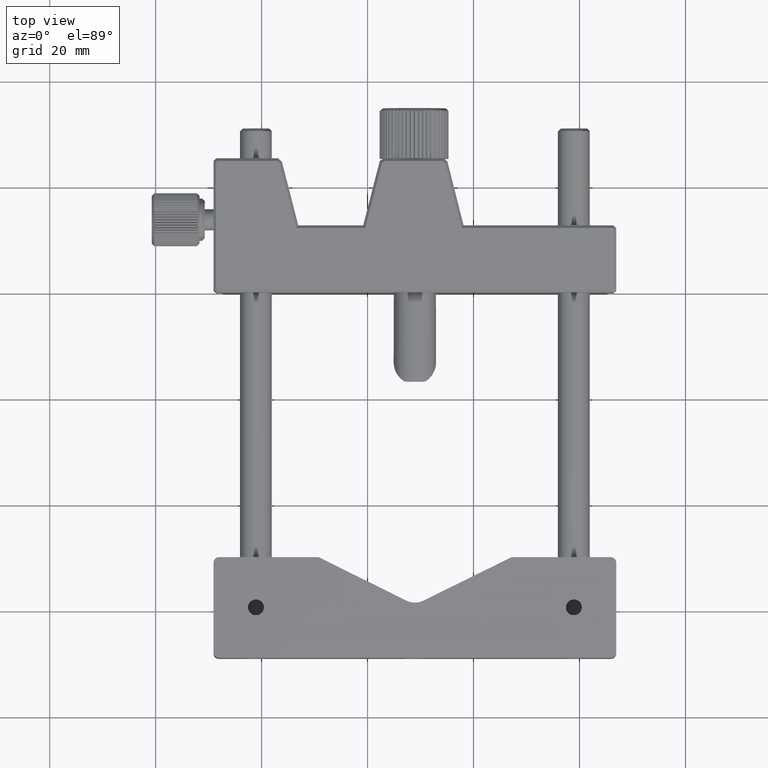
[diagram: clean part render]
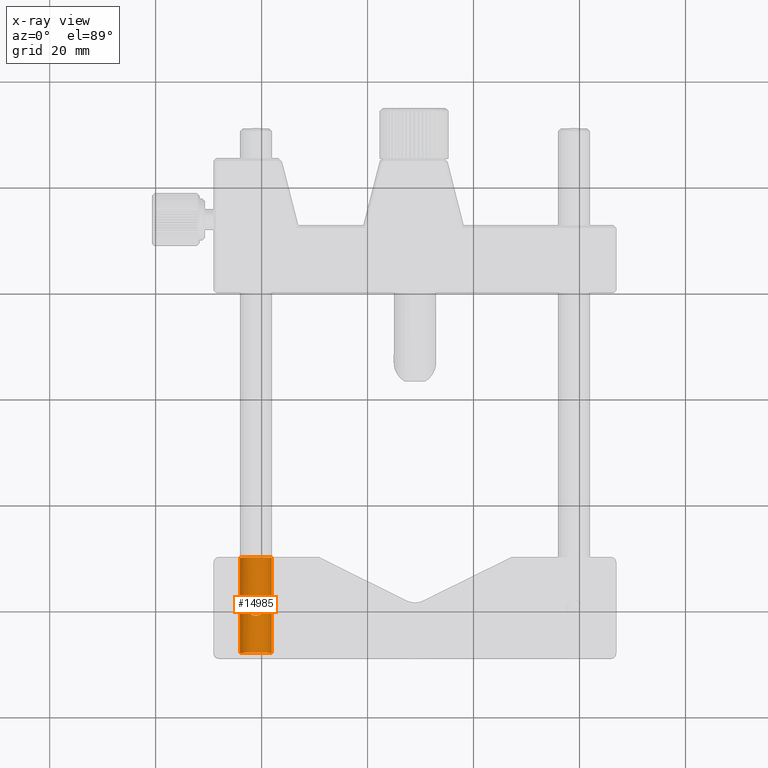
[diagram: x-ray — body ghosted, one internal face saturated and labeled with its STEP entity id]
A machine part, top view, then the same camera in x-ray: the body is ghosted and one INTERNAL B-rep face — a face not visible from any outside direction — is saturated and labeled: STEP entity #14985.
In plain terms, the highlighted cylindrical surface (edge-blend (fillet) strip) has radius 3 mm, axis along (-0, 1, 0).
Its self-contained STEP definition (entity closure, byte-faithful):
#80 = CARTESIAN_POINT ( 'NONE',  ( -55.41710272130040238, -13.82547520767534088, 2.855825252948232418 ) ) ;
#205 = CARTESIAN_POINT ( 'NONE',  ( -55.41536947130393997, -16.19835973381179173, 2.856238943193764701 ) ) ;
#407 = B_SPLINE_CURVE_WITH_KNOTS ( 'NONE', 3,
 ( #4691, #5531, #8072, #940, #7228, #14167, #10587, #15556, #4309, #10508, #15472, #11809, #12191, #1937, #6920, #5911, #12944, #13023, #3013, #1781, #6763, #10964, #12113, #10885, #1019, #5993, #9292, #1856, #637, #7387, #11369, #205, #6319, #13802, #2489, #15116, #13881, #7553, #11127, #11206, #7711, #3793, #5016, #1266 ),
 .UNSPECIFIED., .F., .F.,
 ( 4, 2, 2, 2, 2, 2, 2, 2, 2, 2, 2, 2, 2, 2, 2, 2, 2, 2, 2, 2, 2, 4 ),
 ( 0.000000000000000000, 0.03125000000000363598, 0.06250000000000727196, 0.07812500000000908995, 0.08593750000000950628, 0.09375000000000993650, 0.1250000000000148770, 0.1406250000000162370, 0.1562500000000176248, 0.1875000000000186795, 0.2187500000000197342, 0.2500000000000207612, 0.2812500000000218159, 0.3125000000000229261, 0.3281250000000234812, 0.3437500000000239808, 0.3750000000000227596, 0.3906250000000217604, 0.3984375000000201505, 0.4062500000000185407, 0.4375000000000122680, 0.5000000000000000000 ),
 .UNSPECIFIED. ) ;
#449 = CARTESIAN_POINT ( 'NONE',  ( -55.07987603206255756, -14.19266811336034806, 2.724051960948217666 ) ) ;
#505 = DIRECTION ( 'NONE',  ( 3.700743415417155106E-16, -1.000000000000000000, -1.110223024625150032E-15 ) ) ;
#527 = DIRECTION ( 'NONE',  ( -2.891205793294680298E-16, 1.000000000000000000, 0.000000000000000000 ) ) ;
#600 = DIRECTION ( 'NONE',  ( -1.000000000000000000, -2.891205793294675861E-16, 0.000000000000000000 ) ) ;
#637 = CARTESIAN_POINT ( 'NONE',  ( -55.66755034661944990, -16.35441379996938238, 2.924750574625971655 ) ) ;
#680 = CARTESIAN_POINT ( 'NONE',  ( -54.83672654127905588, -14.91494193871942819, 2.598056185874276558 ) ) ;
#763 = CARTESIAN_POINT ( 'NONE',  ( -56.72902655764056590, -13.56018989498116945, 2.975927545958599651 ) ) ;
#940 = CARTESIAN_POINT ( 'NONE',  ( -57.78790359044279512, -15.40222005681636297, 2.625774928291876531 ) ) ;
#1019 = CARTESIAN_POINT ( 'NONE',  ( -56.14370957925024896, -16.50170176731617033, 2.995454541532370119 ) ) ;
#1266 = CARTESIAN_POINT ( 'NONE',  ( -54.83676122642620498, -15.01113522329382377, 2.598076211353318232 ) ) ;
#1302 = CARTESIAN_POINT ( 'NONE',  ( -55.66576929737503576, -13.66592586941186127, 2.925484788499842281 ) ) ;
#1781 = CARTESIAN_POINT ( 'NONE',  ( -56.82480957850629721, -16.43298667487633224, 2.961503034378269117 ) ) ;
#1849 = CARTESIAN_POINT ( 'NONE',  ( -54.83676122642620498, -15.01113522329382377, 2.598076211353318232 ) ) ;
#1856 = CARTESIAN_POINT ( 'NONE',  ( -55.71196939826877781, -16.37570301829596175, 2.934580743676028280 ) ) ;
#1937 = CARTESIAN_POINT ( 'NONE',  ( -57.36514401036501454, -16.10414462192203899, 2.818457113266345182 ) ) ;
#1962 = AXIS2_PLACEMENT_3D ( 'NONE', #10299, #505, #4244 ) ;
#1981 = CARTESIAN_POINT ( 'NONE',  ( -56.23985570529934108, -13.51113837306452936, 3.000000000101851416 ) ) ;
#2285 = CARTESIAN_POINT ( 'NONE',  ( -55.94612472624737620, -13.55987217887168406, 2.976087204763836702 ) ) ;
#2489 = CARTESIAN_POINT ( 'NONE',  ( -55.20947094690264123, -16.00174367680617493, 2.780340395169040857 ) ) ;
#2755 = CARTESIAN_POINT ( 'NONE',  ( -58.73576175362072149, -23.51113522487047192, 1.843640159924744948 ) ) ;
#2819 = CARTESIAN_POINT ( 'NONE',  ( -54.88561886242801080, -14.62005039286978914, 2.625774928302226030 ) ) ;
#2840 = CARTESIAN_POINT ( 'NONE',  ( -59.33676122642619788, -23.51113522487050389, 4.903402095317040417E-15 ) ) ;
#3013 = CARTESIAN_POINT ( 'NONE',  ( -57.00775315549859101, -16.35634458032433614, 2.925484788495664734 ) ) ;
#3056 = FACE_OUTER_BOUND ( 'NONE', #9961, .T. ) ;
#3214 = CARTESIAN_POINT ( 'NONE',  ( -57.43212568144006980, -13.98525016660350140, 2.793111094661913096 ) ) ;
#3594 = CARTESIAN_POINT ( 'NONE',  ( -55.84871287432492437, -13.58928377486930117, 2.961503034374096011 ) ) ;
#3671 = CARTESIAN_POINT ( 'NONE',  ( -57.63671208203341223, -14.25651829093940925, 2.704438703098174912 ) ) ;
#3750 = CARTESIAN_POINT ( 'NONE',  ( -56.96155305459305396, -13.64656743144859874, 2.934580743674175540 ) ) ;
#3793 = CARTESIAN_POINT ( 'NONE',  ( -54.87611242841357040, -15.40599152158254448, 2.621819931972202866 ) ) ;
#3797 = ORIENTED_EDGE ( 'NONE', *, *, #10987, .T. ) ;
#4056 = CARTESIAN_POINT ( 'NONE',  ( -56.72946030812492069, -23.51113522487045771, 3.000000000000000000 ) ) ;
#4244 = DIRECTION ( 'NONE',  ( 1.000000000000000000, 2.891205793294675861E-16, -2.397580590852828151E-15 ) ) ;
#4309 = CARTESIAN_POINT ( 'NONE',  ( -57.63367693783443713, -15.76478675558814402, 2.705219770988068984 ) ) ;
#4510 = CARTESIAN_POINT ( 'NONE',  ( -57.50944672432897420, -14.07580790438206364, 2.761354331634707115 ) ) ;
#4691 = CARTESIAN_POINT ( 'NONE',  ( -57.83676122642620498, -15.01113522802359768, 2.598076211353316456 ) ) ;
#4711 = CARTESIAN_POINT ( 'NONE',  ( -53.71540206136342022, -23.51113522487046481, 1.510856941112693308 ) ) ;
#4795 = CARTESIAN_POINT ( 'NONE',  ( -53.33676122642619788, -23.51113522487050389, -7.161305845995138923E-15 ) ) ;
#4799 = VERTEX_POINT ( 'NONE', #1849 ) ;
#4801 = DIRECTION ( 'NONE',  ( -2.891205793294680298E-16, 1.000000000000000000, 0.000000000000000000 ) ) ;
#4817 = CARTESIAN_POINT ( 'NONE',  ( -57.56602700932599248, -14.15171488671980171, 2.736630582094502273 ) ) ;
#4980 = CARTESIAN_POINT ( 'NONE',  ( -55.14728803459173889, -14.09270535781067224, 2.754753195843307356 ) ) ;
#5016 = CARTESIAN_POINT ( 'NONE',  ( -54.83683059672046056, -15.20352178771289786, 2.598116262311395808 ) ) ;
#5053 = CARTESIAN_POINT ( 'NONE',  ( -55.45431277192528086, -13.79755348398204973, 2.867607880034999557 ) ) ;
#5336 = CARTESIAN_POINT ( 'NONE',  ( -55.02753233339325334, -14.27900376953088291, 2.699275825721230149 ) ) ;
#5447 = CARTESIAN_POINT ( 'NONE',  ( -59.33676122642620498, -5.511135224870471916, -8.673617379884108442E-16 ) ) ;
#5531 = CARTESIAN_POINT ( 'NONE',  ( -57.83672641382955248, -15.10768076692028394, 2.598096310415355159 ) ) ;
#5581 = B_SPLINE_CURVE_WITH_KNOTS ( 'NONE', 3,
 ( #11855, #680, #15599, #2819, #7795, #10398, #12750, #5336, #6644, #11614, #449, #4980, #7434, #8582, #8736, #80, #5053, #12393, #1302, #3594, #2285, #11940, #1981, #15978, #6963, #763, #13149, #3750, #14842, #14450, #9888, #9960, #12232, #3214, #14366, #4510, #9494, #8189, #4817, #3671, #5734, #9803, #13528, #8656 ),
 .UNSPECIFIED., .F., .F.,
 ( 4, 2, 2, 2, 2, 2, 2, 2, 2, 2, 2, 2, 2, 2, 2, 2, 2, 2, 2, 2, 2, 4 ),
 ( 0.5000000000000000000, 0.5312500000000046629, 0.5625000000000094369, 0.5781250000000117684, 0.5859375000000126565, 0.5937500000000135447, 0.6250000000000131006, 0.6406250000000119904, 0.6562500000000108802, 0.6875000000000086597, 0.7187500000000063283, 0.7500000000000039968, 0.7812500000000017764, 0.8124999999999995559, 0.8281249999999983347, 0.8437499999999972244, 0.8749999999999948930, 0.8906249999999938938, 0.8984374999999936717, 0.9062499999999933387, 0.9374999999999955591, 1.000000000000000000 ),
 .UNSPECIFIED. ) ;
#5734 = CARTESIAN_POINT ( 'NONE',  ( -57.68266233353462979, -14.34150654069628494, 2.681493777093832964 ) ) ;
#5911 = CARTESIAN_POINT ( 'NONE',  ( -57.25641973153796727, -16.19679524207887411, 2.855825252952755910 ) ) ;
#5993 = CARTESIAN_POINT ( 'NONE',  ( -55.94449589522996291, -16.46208055476776977, 2.975927545960376897 ) ) ;
#6020 = CARTESIAN_POINT ( 'NONE',  ( -54.82590428531350568, -23.51113522487047547, 2.621359165062771446 ) ) ;
#6319 = CARTESIAN_POINT ( 'NONE',  ( -55.34228508856546824, -16.13811765802827836, 2.831287466322889745 ) ) ;
#6424 = CARTESIAN_POINT ( 'NONE',  ( -57.12200487950403271, -23.51113522487047192, 2.921918030004947209 ) ) ;
#6547 = EDGE_CURVE ( 'NONE', #8459, #7944, #14575, .T. ) ;
#6562 = CARTESIAN_POINT ( 'NONE',  ( -59.33676122642620498, -5.511135224870471916, -8.673617379884030542E-16 ) ) ;
#6569 = CARTESIAN_POINT ( 'NONE',  ( -56.33676122642620498, -5.511135224870471028, -8.673617379884030542E-16 ) ) ;
#6644 = CARTESIAN_POINT ( 'NONE',  ( -55.03984551505301681, -14.25748369407705241, 2.705219771004839124 ) ) ;
#6763 = CARTESIAN_POINT ( 'NONE',  ( -56.72739772658891155, -16.46239827087287821, 2.976087204765416772 ) ) ;
#6912 = CARTESIAN_POINT ( 'NONE',  ( -53.33676122642619788, -5.511135224870470140, -4.999676982441933696E-16 ) ) ;
#6920 = CARTESIAN_POINT ( 'NONE',  ( -57.33007254223858240, -16.13604482976149868, 2.831049676587498620 ) ) ;
#6963 = CARTESIAN_POINT ( 'NONE',  ( -56.52981287358405638, -13.52056868241667331, 2.995454541534144255 ) ) ;
#7228 = CARTESIAN_POINT ( 'NONE',  ( -57.75837063707907504, -15.49945804610520383, 2.642122130140737379 ) ) ;
#7387 = CARTESIAN_POINT ( 'NONE',  ( -55.58047064928538106, -16.30718214019855239, 2.903452029628645903 ) ) ;
#7434 = CARTESIAN_POINT ( 'NONE',  ( -55.20832175930873120, -14.01840145636175272, 2.780595433992928189 ) ) ;
#7553 = CARTESIAN_POINT ( 'NONE',  ( -55.12074690996405479, -15.88920956217511637, 2.742544980333321725 ) ) ;
#7655 = CARTESIAN_POINT ( 'NONE',  ( -55.55151757334837725, -23.51113522487047547, 2.921918030004947653 ) ) ;
#7711 = CARTESIAN_POINT ( 'NONE',  ( -54.99086011928745421, -15.68076390896855088, 2.681493777078054919 ) ) ;
#7795 = CARTESIAN_POINT ( 'NONE',  ( -54.91515181572334114, -14.52281240374580484, 2.642122130114730627 ) ) ;
#7944 = VERTEX_POINT ( 'NONE', #6912 ) ;
#8034 = DIRECTION ( 'NONE',  ( -2.891205793294680298E-16, 1.000000000000000000, 0.000000000000000000 ) ) ;
#8072 = CARTESIAN_POINT ( 'NONE',  ( -57.82719738160246692, -15.20432376114014161, 2.603672061153882833 ) ) ;
#8189 = CARTESIAN_POINT ( 'NONE',  ( -57.55277554287127373, -14.13306088754813139, 2.742544980340940963 ) ) ;
#8459 = VERTEX_POINT ( 'NONE', #14055 ) ;
#8474 = CARTESIAN_POINT ( 'NONE',  ( -54.49312106650145182, -23.51113522487047192, 2.399000527194536936 ) ) ;
#8582 = CARTESIAN_POINT ( 'NONE',  ( -55.30837844247821522, -13.91812582782772800, 2.818457113262871516 ) ) ;
#8656 = CARTESIAN_POINT ( 'NONE',  ( -57.83676122642620498, -15.01113522802359768, 2.598076211353316456 ) ) ;
#8736 = CARTESIAN_POINT ( 'NONE',  ( -55.34344991059991514, -13.88622561999271632, 2.831049676582615415 ) ) ;
#8798 = VERTEX_POINT ( 'NONE', #10318 ) ;
#8952 = CARTESIAN_POINT ( 'NONE',  ( -59.33676122642620498, -23.51113522487047192, 0.3926990816987233068 ) ) ;
#9047 = VERTEX_POINT ( 'NONE', #5447 ) ;
#9292 = CARTESIAN_POINT ( 'NONE',  ( -55.84778444284602728, -16.43259083859915748, 2.961320243382230988 ) ) ;
#9494 = CARTESIAN_POINT ( 'NONE',  ( -57.52416296128507156, -14.09462931854561596, 2.755053703114829666 ) ) ;
#9538 = VERTEX_POINT ( 'NONE', #13896 ) ;
#9783 = CARTESIAN_POINT ( 'NONE',  ( -53.33676122642619077, -23.51113522487046481, 0.3926990816987172561 ) ) ;
#9803 = CARTESIAN_POINT ( 'NONE',  ( -57.79741002449968335, -14.61627892831051589, 2.621819931940552628 ) ) ;
#9805 = ORIENTED_EDGE ( 'NONE', *, *, #12438, .F. ) ;
#9872 = CARTESIAN_POINT ( 'NONE',  ( -53.33676122642619788, -5.511135224870470140, -4.999676982441970181E-16 ) ) ;
#9888 = CARTESIAN_POINT ( 'NONE',  ( -57.13713603475249414, -13.74199434801186470, 2.891568101040217886 ) ) ;
#9960 = CARTESIAN_POINT ( 'NONE',  ( -57.25815298156511801, -13.82391071594531695, 2.856238943188899260 ) ) ;
#9961 = EDGE_LOOP ( 'NONE', ( #13387, #13495, #3797, #9805 ) ) ;
#10019 = VECTOR ( 'NONE', #8034, 1000.000000000000000 ) ;
#10100 = AXIS2_PLACEMENT_3D ( 'NONE', #6569, #527, #600 ) ;
#10299 = CARTESIAN_POINT ( 'NONE',  ( -56.33676122642620498, -5.511135224870471028, 3.293450735725519879E-15 ) ) ;
#10318 = CARTESIAN_POINT ( 'NONE',  ( -57.83676122642620498, -15.01113522802359768, 2.598076211353316456 ) ) ;
#10398 = CARTESIAN_POINT ( 'NONE',  ( -54.97134042941168275, -14.38823979392837948, 2.671342679972092515 ) ) ;
#10508 = CARTESIAN_POINT ( 'NONE',  ( -57.60783631408197891, -15.80746342938370930, 2.717456990162522956 ) ) ;
#10587 = CARTESIAN_POINT ( 'NONE',  ( -57.68113812573201216, -15.67816123805649475, 2.682038751270000354 ) ) ;
#10631 = FACE_BOUND ( 'NONE', #14743, .T. ) ;
#10885 = CARTESIAN_POINT ( 'NONE',  ( -56.23985569903363313, -16.51113837306816379, 2.999999999898147252 ) ) ;
#10964 = CARTESIAN_POINT ( 'NONE',  ( -56.53144169180007594, -16.50138405376433326, 2.995294883985480272 ) ) ;
#10987 = EDGE_CURVE ( 'NONE', #9538, #9047, #12904, .T. ) ;
#11006 = B_SPLINE_CURVE_WITH_KNOTS ( 'NONE', 3,
 ( #4795, #9783, #15877, #4711, #14651, #8474, #6020, #7655, #11478, #4056, #6424, #15061, #13905, #2755, #11230, #12454, #8952, #2840 ),
 .UNSPECIFIED., .F., .F.,
 ( 4, 2, 2, 2, 2, 2, 2, 2, 4 ),
 ( 0.000000000000000000, 0.1250000000000000833, 0.2500000000000001665, 0.3750000000000001665, 0.5000000000000002220, 0.6250000000000002220, 0.7500000000000001110, 0.8750000000000001110, 1.000000000000000000 ),
 .UNSPECIFIED. ) ;
#11127 = CARTESIAN_POINT ( 'NONE',  ( -55.10749544353108575, -15.87055556303248061, 2.736630582096616138 ) ) ;
#11206 = CARTESIAN_POINT ( 'NONE',  ( -55.03681037080093574, -15.76575215875593905, 2.704438703089952600 ) ) ;
#11230 = CARTESIAN_POINT ( 'NONE',  ( -58.95812039148896133, -23.51113522487046836, 1.510856941112698193 ) ) ;
#11369 = CARTESIAN_POINT ( 'NONE',  ( -55.53638641809159537, -16.28027610172092210, 2.891568101037793603 ) ) ;
#11478 = CARTESIAN_POINT ( 'NONE',  ( -55.94406214472748218, -23.51113522487047547, 2.999999999999999112 ) ) ;
#11614 = CARTESIAN_POINT ( 'NONE',  ( -55.06568613879289842, -14.21480702030901178, 2.717456990172987030 ) ) ;
#11694 = CYLINDRICAL_SURFACE ( 'NONE', #10100, 3.000000000000002665 ) ;
#11774 = ORIENTED_EDGE ( 'NONE', *, *, #15079, .T. ) ;
#11809 = CARTESIAN_POINT ( 'NONE',  ( -57.52623441833073059, -15.92956509185885317, 2.754753195811391109 ) ) ;
#11855 = CARTESIAN_POINT ( 'NONE',  ( -54.83676122642620498, -15.01113522329382377, 2.598076211353318232 ) ) ;
#11880 = EDGE_CURVE ( 'NONE', #8798, #4799, #407, .T. ) ;
#11940 = CARTESIAN_POINT ( 'NONE',  ( -56.14208076106855572, -13.52088639597289976, 2.995294883987070111 ) ) ;
#12113 = CARTESIAN_POINT ( 'NONE',  ( -56.43366674751248269, -16.51113207667276939, 3.000000000101850972 ) ) ;
#12191 = CARTESIAN_POINT ( 'NONE',  ( -57.46520069356219551, -16.00386899336135826, 2.780595433985915577 ) ) ;
#12232 = CARTESIAN_POINT ( 'NONE',  ( -57.33123736432724371, -13.88415279175294081, 2.831287466307636613 ) ) ;
#12393 = CARTESIAN_POINT ( 'NONE',  ( -55.57951677960294745, -13.71279243319670549, 2.904159389860497598 ) ) ;
#12438 = EDGE_CURVE ( 'NONE', #7944, #9047, #12639, .T. ) ;
#12454 = CARTESIAN_POINT ( 'NONE',  ( -59.25867925643117218, -23.51113522487047192, 0.7852436530778406087 ) ) ;
#12639 = CIRCLE ( 'NONE', #1962, 3.000000000000002665 ) ;
#12750 = CARTESIAN_POINT ( 'NONE',  ( -54.99238432715827685, -14.34410921160182895, 2.682038751288988276 ) ) ;
#12904 = LINE ( 'NONE', #6562, #10019 ) ;
#12944 = CARTESIAN_POINT ( 'NONE',  ( -57.21920968094573823, -16.22471696574883993, 2.867607880029567458 ) ) ;
#13023 = CARTESIAN_POINT ( 'NONE',  ( -57.09400567321234377, -16.30947801656424190, 2.904159389871340036 ) ) ;
#13109 = ORIENTED_EDGE ( 'NONE', *, *, #11880, .T. ) ;
#13149 = CARTESIAN_POINT ( 'NONE',  ( -56.82573800998763858, -13.58967961113443934, 2.961320243385919593 ) ) ;
#13387 = ORIENTED_EDGE ( 'NONE', *, *, #6547, .F. ) ;
#13495 = ORIENTED_EDGE ( 'NONE', *, *, #15422, .T. ) ;
#13528 = CARTESIAN_POINT ( 'NONE',  ( -57.83683062008817188, -14.81868625440342591, 2.598036146903883736 ) ) ;
#13655 = VECTOR ( 'NONE', #4801, 1000.000000000000000 ) ;
#13802 = CARTESIAN_POINT ( 'NONE',  ( -55.24139677139227445, -16.03702028311721506, 2.793111094654321391 ) ) ;
#13881 = CARTESIAN_POINT ( 'NONE',  ( -55.14935949154023831, -15.92764113116753499, 2.755053703103128360 ) ) ;
#13896 = CARTESIAN_POINT ( 'NONE',  ( -59.33676122642619788, -23.51113522487050389, 4.903402095317040417E-15 ) ) ;
#13905 = CARTESIAN_POINT ( 'NONE',  ( -58.18040138635094394, -23.51113522487047192, 2.399000527194540933 ) ) ;
#14055 = CARTESIAN_POINT ( 'NONE',  ( -53.33676122642619788, -23.51113522487050389, -7.161305845995138923E-15 ) ) ;
#14167 = CARTESIAN_POINT ( 'NONE',  ( -57.70218202346580227, -15.63403065575747242, 2.671342679959054056 ) ) ;
#14366 = CARTESIAN_POINT ( 'NONE',  ( -57.46405150591991173, -14.02052677290445537, 2.780340395181143176 ) ) ;
#14450 = CARTESIAN_POINT ( 'NONE',  ( -57.09305180358092002, -13.71508830954781821, 2.903452029625023023 ) ) ;
#14575 = LINE ( 'NONE', #9872, #13655 ) ;
#14651 = CARTESIAN_POINT ( 'NONE',  ( -53.93776069923166006, -23.51113522487047547, 1.843640159924740063 ) ) ;
#14743 = EDGE_LOOP ( 'NONE', ( #11774, #13109 ) ) ;
#14842 = CARTESIAN_POINT ( 'NONE',  ( -57.00597210624698619, -13.66785664977699533, 2.924750574622766219 ) ) ;
#14985 = ADVANCED_FACE ( 'NONE', ( #3056, #10631 ), #11694, .F. ) ;
#15061 = CARTESIAN_POINT ( 'NONE',  ( -57.84761816753890429, -23.51113522487047902, 2.621359165062774554 ) ) ;
#15079 = EDGE_CURVE ( 'NONE', #4799, #8798, #5581, .T. ) ;
#15116 = CARTESIAN_POINT ( 'NONE',  ( -55.16407572849380614, -15.94646254532857554, 2.761354331622122515 ) ) ;
#15422 = EDGE_CURVE ( 'NONE', #8459, #9538, #11006, .T. ) ;
#15472 = CARTESIAN_POINT ( 'NONE',  ( -57.59364642077244412, -15.82960233639837888, 2.724051960956146434 ) ) ;
#15556 = CARTESIAN_POINT ( 'NONE',  ( -57.64599011949727725, -15.74326668012742836, 2.699275825702734277 ) ) ;
#15599 = CARTESIAN_POINT ( 'NONE',  ( -54.84632507123160394, -14.81794668865549269, 2.603672061143557315 ) ) ;
#15877 = CARTESIAN_POINT ( 'NONE',  ( -53.41484319642125200, -23.51113522487046126, 0.7852436530778346135 ) ) ;
#15978 = CARTESIAN_POINT ( 'NONE',  ( -56.43366675385935594, -13.51113207667641269, 2.999999999898147252 ) ) ;